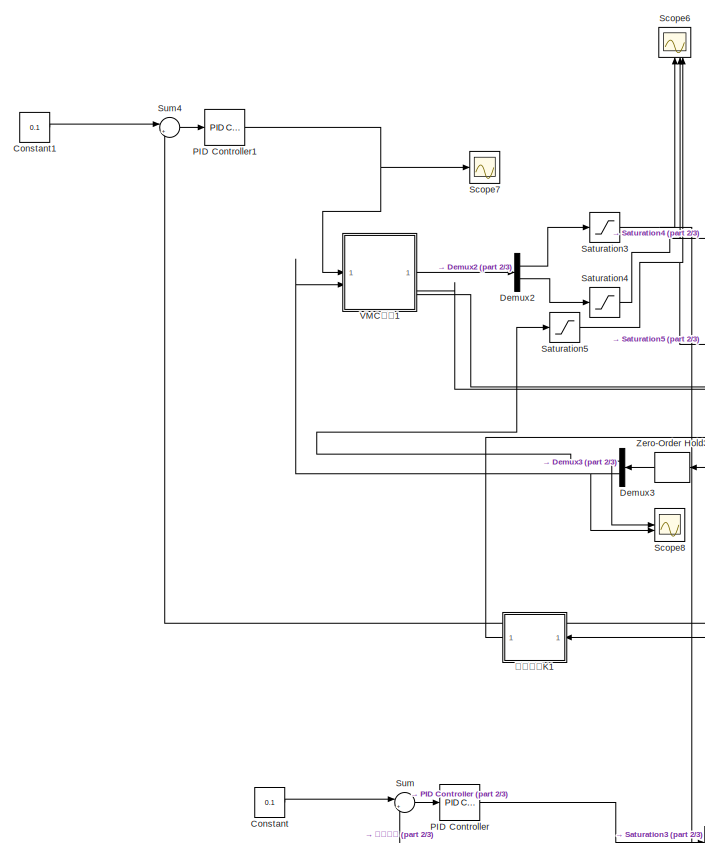
[diagram: root canvas - part 1/3, top left region]
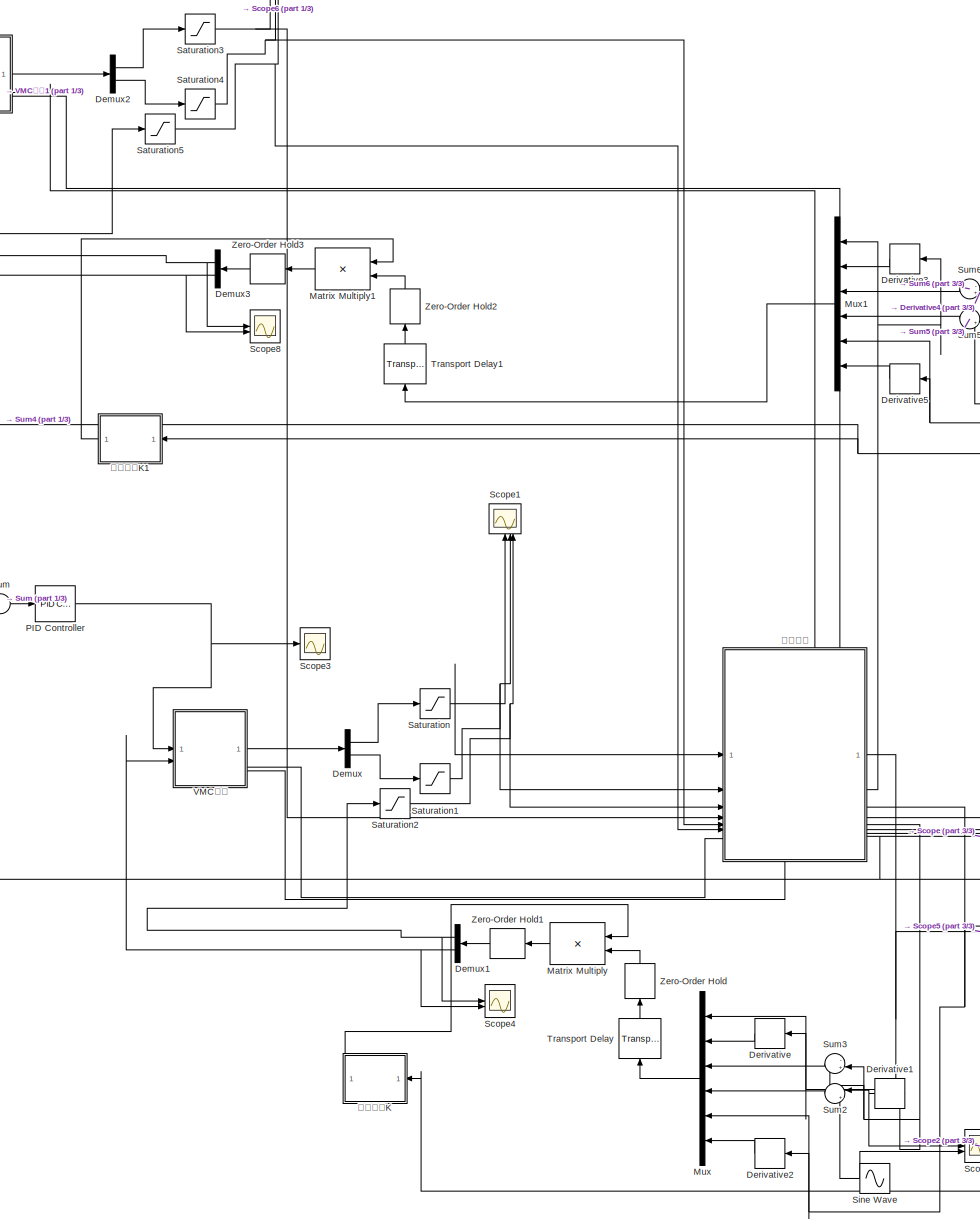
[diagram: root canvas - part 2/3, center side, full height]
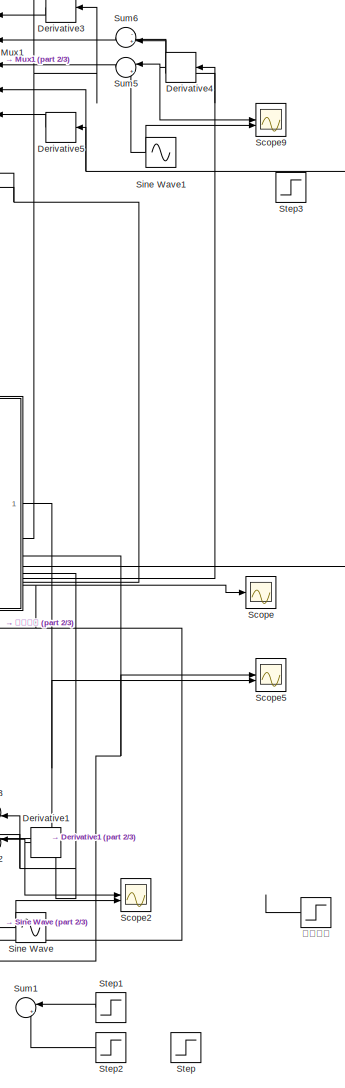
[diagram: root canvas - part 3/3, middle right region]
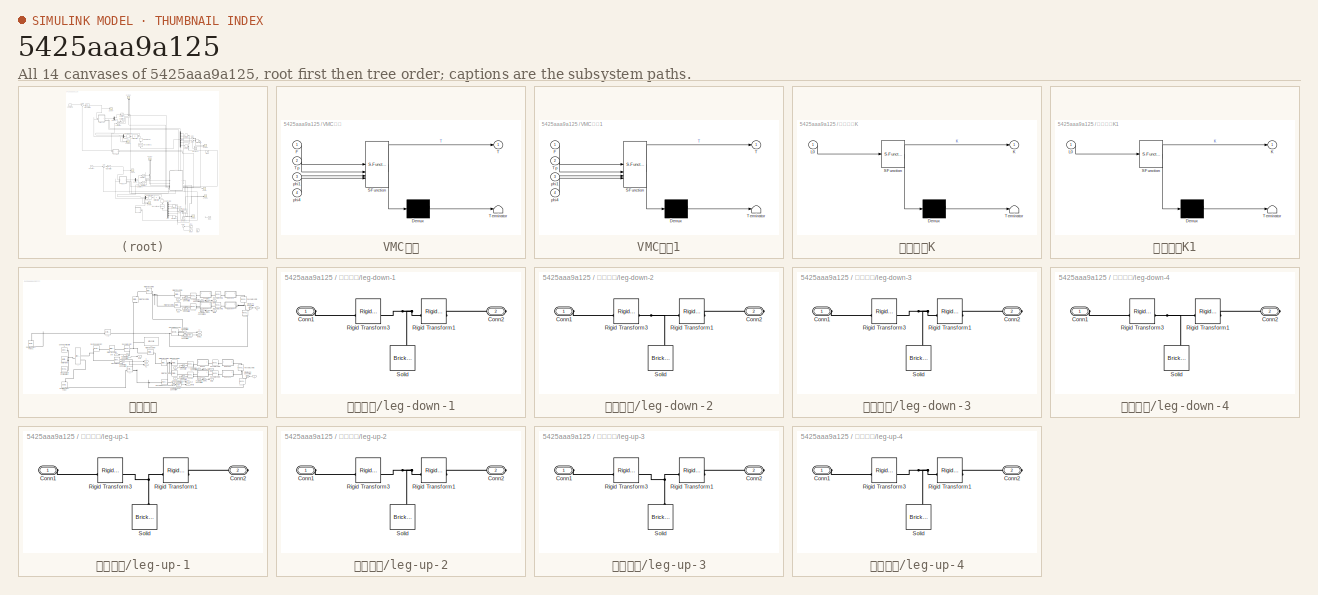
[diagram: thumbnail index - all 14 canvases of the model, root first then tree order]
MODEL slx_5425aaa9a125
KIND model
CONFIG AbsTol = 1e-3
CONFIG EnableMultiTasking = on
CONFIG FixedStep = auto
CONFIG MaxStep = auto
CONFIG MinStep = auto
CONFIG RelTol = 1e-3
CONFIG SampleTimeConstraint = Unconstrained
CONFIG SolverName = VariableStepAuto
CONFIG StartTime = 0.0
CONFIG StopTime = 8
BLOCK [Constant] Constant
  Value = 0.1
BLOCK [Constant] Constant1
  Value = 0.1
BLOCK [Demux] Demux
  Outputs = 2
BLOCK [Demux] Demux1
  NameLocation = top
  Outputs = 2
BLOCK [Demux] Demux2
  Outputs = 2
BLOCK [Demux] Demux3
  NameLocation = top
  Outputs = 2
BLOCK [Derivative] Derivative
BLOCK [Derivative] Derivative1
BLOCK [Derivative] Derivative2
BLOCK [Derivative] Derivative3
BLOCK [Derivative] Derivative4
BLOCK [Derivative] Derivative5
BLOCK [Product] Matrix Multiply
  Multiplication = Matrix(*)
  NameLocation = top
BLOCK [Product] Matrix Multiply1
  Multiplication = Matrix(*)
  NameLocation = top
BLOCK [Mux] Mux
  DisplayOption = bar
  Inputs = 6
  NameLocation = top
BLOCK [Mux] Mux1
  DisplayOption = bar
  Inputs = 6
  NameLocation = top
BLOCK [Reference] PID Controller  REF=slpidlib/PID Controller
  SourceBlock = slpidlib/PID Controller
  SourceType = PID 1dof
BLOCK [Reference] PID Controller1  REF=slpidlib/PID Controller
  SourceBlock = slpidlib/PID Controller
  SourceType = PID 1dof
BLOCK [Saturate] Saturation
  LowerLimit = -0.15
  UpperLimit = 0.15
  ZeroCross = off
BLOCK [Saturate] Saturation1
  LowerLimit = -0.15
  UpperLimit = 0.15
  ZeroCross = off
BLOCK [Saturate] Saturation2
  LowerLimit = -0.03
  UpperLimit = 0.03
  ZeroCross = off
BLOCK [Saturate] Saturation3
  LowerLimit = -0.15
  UpperLimit = 0.15
  ZeroCross = off
BLOCK [Saturate] Saturation4
  LowerLimit = -0.15
  UpperLimit = 0.15
  ZeroCross = off
BLOCK [Saturate] Saturation5
  LowerLimit = -0.03
  UpperLimit = 0.03
  ZeroCross = off
BLOCK [Scope] Scope
  Floating = off
  NumInputPorts = 1
  ScopeSpecificationString = Simulink.scopes.TimeScopeBlockCfg('CurrentConfiguration', extmgr.ConfigurationSet(extmgr.Configuration('Core','General UI',true),extmgr.Configuration('Core','Source UI',true),extmgr.Configuration('Sources','WiredSimulink',true),extmgr.Configuration('Visuals','Time Domain',true,'SerializedDisplays',{struct('MinYLimReal','0.06474','MaxYLimReal','0.09744','YLabelReal','','MinYLimMag','0.06474','MaxYL...<+1444ch>
BLOCK [Scope] Scope1
  Floating = off
  NameLocation = right
  NumInputPorts = 3
  ScopeSpecificationString = Simulink.scopes.TimeScopeBlockCfg('CurrentConfiguration', extmgr.ConfigurationSet(extmgr.Configuration('Core','General UI',true),extmgr.Configuration('Core','Source UI',true),extmgr.Configuration('Sources','WiredSimulink',true,'DataLoggingVariableName','ScopeData1'),extmgr.Configuration('Visuals','Time Domain',true,'SerializedDisplays',{struct('MinYLimReal','-0.1625','MaxYLimReal','0.1625','YLabel...<+1628ch>
BLOCK [Scope] Scope2
  Floating = off
  NumInputPorts = 2
  ScopeSpecificationString = Simulink.scopes.TimeScopeBlockCfg('CurrentConfiguration', extmgr.ConfigurationSet(extmgr.Configuration('Core','General UI',true,'FigureColor',[1 1 1]),extmgr.Configuration('Core','Source UI',true),extmgr.Configuration('Sources','WiredSimulink',true,'DataLoggingVariableName','ScopeData2'),extmgr.Configuration('Visuals','Time Domain',true,'SerializedDisplays',{struct('MinYLimReal','-0.26198','MaxYLi...<+1721ch>
BLOCK [Scope] Scope3
  Floating = off
  NumInputPorts = 1
  ScopeSpecificationString = Simulink.scopes.TimeScopeBlockCfg('CurrentConfiguration', extmgr.ConfigurationSet(extmgr.Configuration('Core','General UI',true),extmgr.Configuration('Core','Source UI',true),extmgr.Configuration('Sources','WiredSimulink',true,'DataLoggingVariableName','ScopeData1'),extmgr.Configuration('Visuals','Time Domain',true,'SerializedDisplays',{struct('MinYLimReal','-29.37195','MaxYLimReal','39.83656','YL...<+1421ch>
BLOCK [Scope] Scope4
  Floating = off
  NumInputPorts = 2
  ScopeSpecificationString = Simulink.scopes.TimeScopeBlockCfg('CurrentConfiguration', extmgr.ConfigurationSet(extmgr.Configuration('Core','General UI',true),extmgr.Configuration('Core','Source UI',true),extmgr.Configuration('Sources','WiredSimulink',true,'DataLoggingVariableName','ScopeData2'),extmgr.Configuration('Visuals','Time Domain',true,'SerializedDisplays',{struct('MinYLimReal','-0.48718','MaxYLimReal','0.44491','YLab...<+1458ch>
BLOCK [Scope] Scope5
  Floating = off
  NumInputPorts = 2
  ScopeSpecificationString = Simulink.scopes.TimeScopeBlockCfg('CurrentConfiguration', extmgr.ConfigurationSet(extmgr.Configuration('Core','General UI',true,'FigureColor',[1 1 1]),extmgr.Configuration('Core','Source UI',true),extmgr.Configuration('Sources','WiredSimulink',true,'DataLoggingVariableName','ScopeData1'),extmgr.Configuration('Visuals','Time Domain',true,'SerializedDisplays',{struct('MinYLimReal','-0.10909','MaxYLi...<+2292ch>
BLOCK [Scope] Scope6
  Floating = off
  NameLocation = right
  NumInputPorts = 3
  ScopeSpecificationString = Simulink.scopes.TimeScopeBlockCfg('CurrentConfiguration', extmgr.ConfigurationSet(extmgr.Configuration('Core','General UI',true),extmgr.Configuration('Core','Source UI',true),extmgr.Configuration('Sources','WiredSimulink',true,'DataLoggingVariableName','ScopeData1'),extmgr.Configuration('Visuals','Time Domain',true,'SerializedDisplays',{struct('MinYLimReal','-0.1625','MaxYLimReal','0.1625','YLabel...<+1590ch>
BLOCK [Scope] Scope7
  Floating = off
  NumInputPorts = 1
  ScopeSpecificationString = Simulink.scopes.TimeScopeBlockCfg('CurrentConfiguration', extmgr.ConfigurationSet(extmgr.Configuration('Core','General UI',true),extmgr.Configuration('Core','Source UI',true),extmgr.Configuration('Sources','WiredSimulink',true,'DataLoggingVariableName','ScopeData2'),extmgr.Configuration('Visuals','Time Domain',true,'SerializedDisplays',{struct('MinYLimReal','-29.37195','MaxYLimReal','39.83656','YL...<+1421ch>
BLOCK [Scope] Scope8
  Floating = off
  NumInputPorts = 2
  ScopeSpecificationString = Simulink.scopes.TimeScopeBlockCfg('CurrentConfiguration', extmgr.ConfigurationSet(extmgr.Configuration('Core','General UI',true),extmgr.Configuration('Core','Source UI',true),extmgr.Configuration('Sources','WiredSimulink',true,'DataLoggingVariableName','ScopeData3'),extmgr.Configuration('Visuals','Time Domain',true,'SerializedDisplays',{struct('MinYLimReal','-0.48718','MaxYLimReal','0.44491','YLab...<+1458ch>
BLOCK [Scope] Scope9
  Floating = off
  NumInputPorts = 2
  ScopeSpecificationString = Simulink.scopes.TimeScopeBlockCfg('CurrentConfiguration', extmgr.ConfigurationSet(extmgr.Configuration('Core','General UI',true,'FigureColor',[1 1 1]),extmgr.Configuration('Core','Source UI',true),extmgr.Configuration('Sources','WiredSimulink',true,'DataLoggingVariableName','ScopeData4'),extmgr.Configuration('Visuals','Time Domain',true,'SerializedDisplays',{struct('MinYLimReal','-0.30788','MaxYLi...<+1721ch>
BLOCK [Sin] Sine Wave
  Frequency = 1.5
  NameLocation = top
  SampleTime = 0
BLOCK [Sin] Sine Wave1
  Amplitude = 1.5
  Frequency = 1.5
  NameLocation = top
  SampleTime = 0
BLOCK [Step] Step
  After = 0.3
  Commented = on
  NameLocation = top
  SampleTime = 0
  Time = 0.2
BLOCK [Step] Step1
  After = 0.8
  Commented = on
  NameLocation = top
  SampleTime = 0
  Time = 0.2
BLOCK [Step] Step2
  After = -0.8
  Commented = on
  NameLocation = top
  SampleTime = 0
  Time = 4
BLOCK [Step] Step3
  Commented = on
  SampleTime = 0
BLOCK [Sum] Sum
  Inputs = |+-
BLOCK [Sum] Sum1
  Commented = on
  Inputs = |++
  NameLocation = top
BLOCK [Sum] Sum2
  Inputs = |+-
  NameLocation = top
BLOCK [Sum] Sum3
  Inputs = -+|
  NameLocation = top
BLOCK [Sum] Sum4
  Inputs = |+-
BLOCK [Sum] Sum5
  Inputs = |+-
  NameLocation = top
BLOCK [Sum] Sum6
  Inputs = -+|
  NameLocation = top
BLOCK [TransportDelay] Transport Delay
  DelayTime = 0
  NameLocation = right
BLOCK [TransportDelay] Transport Delay1
  DelayTime = 0
  NameLocation = right
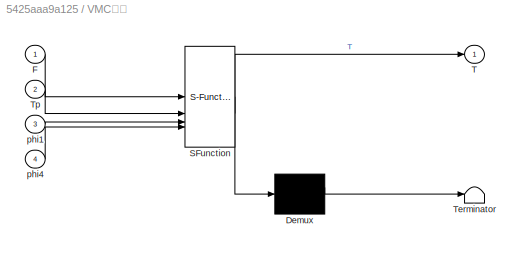
BLOCK [SubSystem] VMC解算
  ErrorFcn = Stateflow.Translate.translate
  PermitHierarchicalResolution = ExplicitOnly
  SFBlockType = MATLAB Function
  TreatAsAtomicUnit = on
BLOCK [Demux] VMC解算/ Demux 
  Outputs = 1
BLOCK [S-Function] VMC解算/ SFunction 
  EnableBusSupport = on
  FunctionName = sf_sfun
  PortCounts = [4 2]
  SFcnIsStateOwnerBlock = off
  SFunctionDeploymentMode = off
  Tag = Stateflow S-Function 2
BLOCK [Terminator] VMC解算/ Terminator 
BLOCK [Inport] VMC解算/F
BLOCK [Outport] VMC解算/T
  VectorParamsAs1DForOutWhenUnconnected = off
BLOCK [Inport] VMC解算/Tp
  Port = 2
BLOCK [Inport] VMC解算/phi1
  Port = 3
BLOCK [Inport] VMC解算/phi4
  Port = 4
BLOCK [SubSystem] VMC解算1
  ErrorFcn = Stateflow.Translate.translate
  PermitHierarchicalResolution = ExplicitOnly
  SFBlockType = MATLAB Function
  TreatAsAtomicUnit = on
BLOCK [Demux] VMC解算1/ Demux 
  Outputs = 1
BLOCK [S-Function] VMC解算1/ SFunction 
  EnableBusSupport = on
  FunctionName = sf_sfun
  PortCounts = [4 2]
  SFcnIsStateOwnerBlock = off
  SFunctionDeploymentMode = off
  Tag = Stateflow S-Function 3
BLOCK [Terminator] VMC解算1/ Terminator 
BLOCK [Inport] VMC解算1/F
BLOCK [Outport] VMC解算1/T
  VectorParamsAs1DForOutWhenUnconnected = off
BLOCK [Inport] VMC解算1/Tp
  Port = 2
BLOCK [Inport] VMC解算1/phi1
  Port = 3
BLOCK [Inport] VMC解算1/phi4
  Port = 4
BLOCK [ZeroOrderHold] Zero-Order Hold
  NameLocation = left
  SampleTime = 0.005
BLOCK [ZeroOrderHold] Zero-Order Hold1
  SampleTime = 0.005
BLOCK [ZeroOrderHold] Zero-Order Hold2
  NameLocation = left
  SampleTime = 0.005
BLOCK [ZeroOrderHold] Zero-Order Hold3
  SampleTime = 0.005
BLOCK [SubSystem] 反馈矩阵K
  ErrorFcn = Stateflow.Translate.translate
  PermitHierarchicalResolution = ExplicitOnly
  SFBlockType = MATLAB Function
  TreatAsAtomicUnit = on
BLOCK [Demux] 反馈矩阵K/ Demux 
  Outputs = 1
BLOCK [S-Function] 反馈矩阵K/ SFunction 
  EnableBusSupport = on
  FunctionName = sf_sfun
  PortCounts = [1 2]
  SFcnIsStateOwnerBlock = off
  SFunctionDeploymentMode = off
  Tag = Stateflow S-Function 1
BLOCK [Terminator] 反馈矩阵K/ Terminator 
BLOCK [Outport] 反馈矩阵K/K
  VectorParamsAs1DForOutWhenUnconnected = off
BLOCK [Inport] 反馈矩阵K/L0
BLOCK [SubSystem] 反馈矩阵K1
  ErrorFcn = Stateflow.Translate.translate
  PermitHierarchicalResolution = ExplicitOnly
  SFBlockType = MATLAB Function
  TreatAsAtomicUnit = on
BLOCK [Demux] 反馈矩阵K1/ Demux 
  Outputs = 1
BLOCK [S-Function] 反馈矩阵K1/ SFunction 
  EnableBusSupport = on
  FunctionName = sf_sfun
  PortCounts = [1 2]
  SFcnIsStateOwnerBlock = off
  SFunctionDeploymentMode = off
  Tag = Stateflow S-Function 4
BLOCK [Terminator] 反馈矩阵K1/ Terminator 
BLOCK [Outport] 反馈矩阵K1/K
  VectorParamsAs1DForOutWhenUnconnected = off
BLOCK [Inport] 反馈矩阵K1/L0
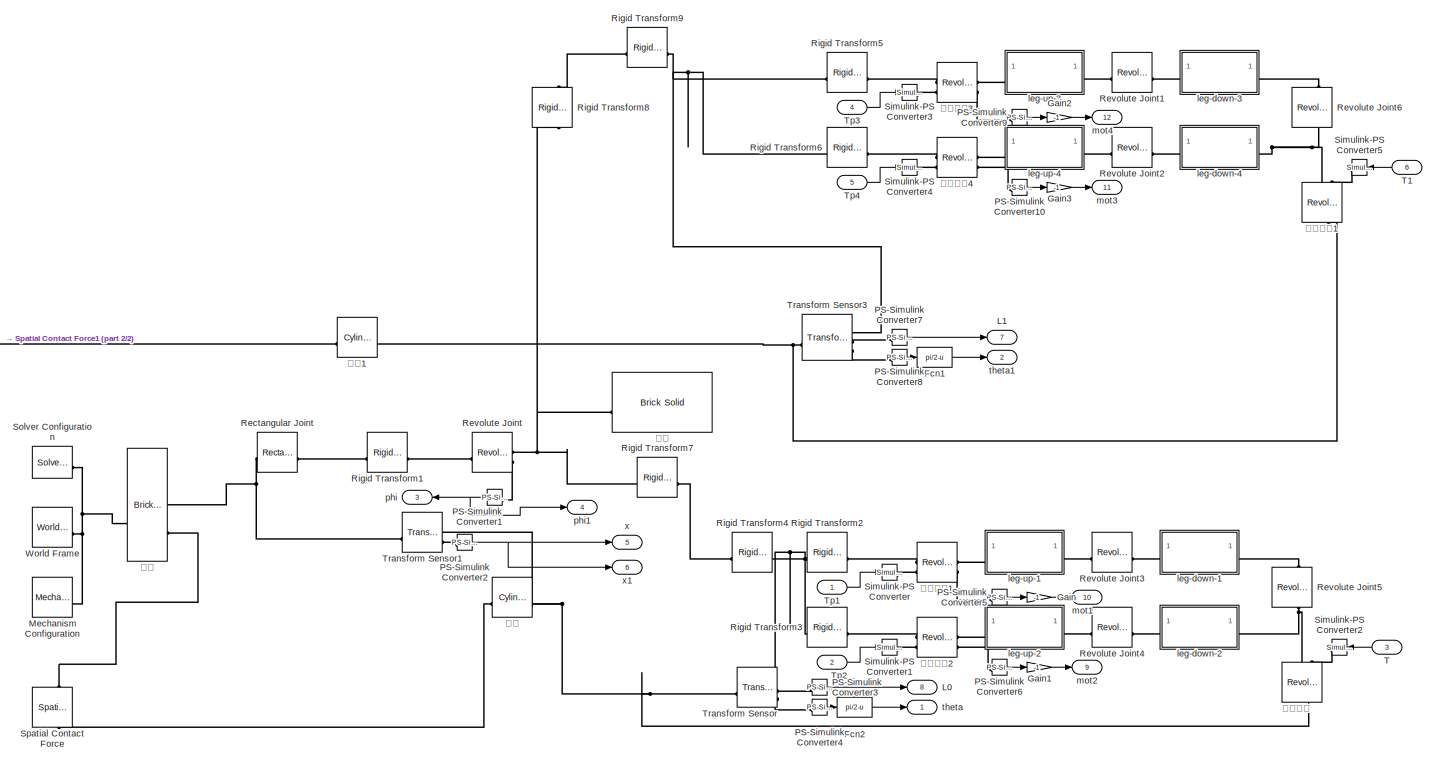
[diagram: 物理系统 - part 1/2, most of the canvas]
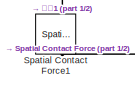
[diagram: 物理系统 - part 2/2, middle left region]
BLOCK [SubSystem] 物理系统
  PortSchema = {"entries":[{"content":{"sides":[{"content":{"connectorIds":["In1","In2","In3","In4","In5","In6","Out9","Out10","Out11","Out12"]},"type":"ConnectorPlacement.EquallySpacedRectSide","uuid":"664d59a3-0a31-49e2-bbc6-fa33d49ec8c0"},{"content":{"connectorIds":["Out1","Out2","Out3","Out4","Out5","Out6","Out7","Out8"],"side":"RIGHT"},"type":"ConnectorPlacement.EquallySpacedRectSide","uuid":"d048cd87-328e-...<+332ch>
BLOCK [Fcn] 物理系统/Fcn1
  Expr = pi/2-u
BLOCK [Fcn] 物理系统/Fcn2
  Expr = pi/2-u
BLOCK [Gain] 物理系统/Gain
  Gain = -1
BLOCK [Gain] 物理系统/Gain1
  Gain = -1
BLOCK [Gain] 物理系统/Gain2
  Gain = -1
BLOCK [Gain] 物理系统/Gain3
  Gain = -1
BLOCK [Outport] 物理系统/L0
  NameLocation = right
  Port = 8
BLOCK [Outport] 物理系统/L1
  NameLocation = right
  Port = 7
BLOCK [Reference] 物理系统/Mechanism Configuration  REF=sm_lib/Utilities/Mechanism
Configuration
  SourceBlock = sm_lib/Utilities/Mechanism\nConfiguration
  SourceType = Mechanism\nConfiguration
BLOCK [Reference] 物理系统/PS-Simulink Converter1  REF=nesl_utility/PS-Simulink
Converter
  SourceBlock = nesl_utility/PS-Simulink\nConverter
  SourceType = PS-Simulink\nConverter
BLOCK [Reference] 物理系统/PS-Simulink Converter10  REF=nesl_utility/PS-Simulink
Converter
  NameLocation = top
  SourceBlock = nesl_utility/PS-Simulink\nConverter
  SourceType = PS-Simulink\nConverter
BLOCK [Reference] 物理系统/PS-Simulink Converter2  REF=nesl_utility/PS-Simulink
Converter
  NameLocation = top
  SourceBlock = nesl_utility/PS-Simulink\nConverter
  SourceType = PS-Simulink\nConverter
BLOCK [Reference] 物理系统/PS-Simulink Converter3  REF=nesl_utility/PS-Simulink
Converter
  NameLocation = top
  SourceBlock = nesl_utility/PS-Simulink\nConverter
  SourceType = PS-Simulink\nConverter
BLOCK [Reference] 物理系统/PS-Simulink Converter4  REF=nesl_utility/PS-Simulink
Converter
  NameLocation = top
  SourceBlock = nesl_utility/PS-Simulink\nConverter
  SourceType = PS-Simulink\nConverter
BLOCK [Reference] 物理系统/PS-Simulink Converter5  REF=nesl_utility/PS-Simulink
Converter
  NameLocation = top
  SourceBlock = nesl_utility/PS-Simulink\nConverter
  SourceType = PS-Simulink\nConverter
BLOCK [Reference] 物理系统/PS-Simulink Converter6  REF=nesl_utility/PS-Simulink
Converter
  NameLocation = top
  SourceBlock = nesl_utility/PS-Simulink\nConverter
  SourceType = PS-Simulink\nConverter
BLOCK [Reference] 物理系统/PS-Simulink Converter7  REF=nesl_utility/PS-Simulink
Converter
  NameLocation = top
  SourceBlock = nesl_utility/PS-Simulink\nConverter
  SourceType = PS-Simulink\nConverter
BLOCK [Reference] 物理系统/PS-Simulink Converter8  REF=nesl_utility/PS-Simulink
Converter
  NameLocation = top
  SourceBlock = nesl_utility/PS-Simulink\nConverter
  SourceType = PS-Simulink\nConverter
BLOCK [Reference] 物理系统/PS-Simulink Converter9  REF=nesl_utility/PS-Simulink
Converter
  NameLocation = top
  SourceBlock = nesl_utility/PS-Simulink\nConverter
  SourceType = PS-Simulink\nConverter
BLOCK [Reference] 物理系统/Rectangular Joint  REF=sm_lib/Joints/Rectangular
Joint
  SourceBlock = sm_lib/Joints/Rectangular\nJoint
  SourceType = Rectangular\nJoint
BLOCK [Reference] 物理系统/Revolute Joint  REF=sm_lib/Joints/Revolute Joint
  SourceBlock = sm_lib/Joints/Revolute Joint
  SourceType = Revolute Joint
BLOCK [Reference] 物理系统/Revolute Joint1  REF=sm_lib/Joints/Revolute Joint
  SourceBlock = sm_lib/Joints/Revolute Joint
  SourceType = Revolute Joint
BLOCK [Reference] 物理系统/Revolute Joint2  REF=sm_lib/Joints/Revolute Joint
  SourceBlock = sm_lib/Joints/Revolute Joint
  SourceType = Revolute Joint
BLOCK [Reference] 物理系统/Revolute Joint3  REF=sm_lib/Joints/Revolute Joint
  SourceBlock = sm_lib/Joints/Revolute Joint
  SourceType = Revolute Joint
BLOCK [Reference] 物理系统/Revolute Joint4  REF=sm_lib/Joints/Revolute Joint
  SourceBlock = sm_lib/Joints/Revolute Joint
  SourceType = Revolute Joint
BLOCK [Reference] 物理系统/Revolute Joint5  REF=sm_lib/Joints/Revolute Joint
  NameLocation = right
  SourceBlock = sm_lib/Joints/Revolute Joint
  SourceType = Revolute Joint
BLOCK [Reference] 物理系统/Revolute Joint6  REF=sm_lib/Joints/Revolute Joint
  NameLocation = right
  SourceBlock = sm_lib/Joints/Revolute Joint
  SourceType = Revolute Joint
BLOCK [Reference] 物理系统/Rigid Transform1  REF=sm_lib/Frames and
Transforms/Rigid
Transform
  SourceBlock = sm_lib/Frames and\nTransforms/Rigid\nTransform
  SourceType = Rigid\nTransform
BLOCK [Reference] 物理系统/Rigid Transform2  REF=sm_lib/Frames and
Transforms/Rigid
Transform
  SourceBlock = sm_lib/Frames and\nTransforms/Rigid\nTransform
  SourceType = Rigid\nTransform
BLOCK [Reference] 物理系统/Rigid Transform3  REF=sm_lib/Frames and
Transforms/Rigid
Transform
  SourceBlock = sm_lib/Frames and\nTransforms/Rigid\nTransform
  SourceType = Rigid\nTransform
BLOCK [Reference] 物理系统/Rigid Transform4  REF=sm_lib/Frames and
Transforms/Rigid
Transform
  SourceBlock = sm_lib/Frames and\nTransforms/Rigid\nTransform
  SourceType = Rigid\nTransform
BLOCK [Reference] 物理系统/Rigid Transform5  REF=sm_lib/Frames and
Transforms/Rigid
Transform
  SourceBlock = sm_lib/Frames and\nTransforms/Rigid\nTransform
  SourceType = Rigid\nTransform
BLOCK [Reference] 物理系统/Rigid Transform6  REF=sm_lib/Frames and
Transforms/Rigid
Transform
  SourceBlock = sm_lib/Frames and\nTransforms/Rigid\nTransform
  SourceType = Rigid\nTransform
BLOCK [Reference] 物理系统/Rigid Transform7  REF=sm_lib/Frames and
Transforms/Rigid
Transform
  SourceBlock = sm_lib/Frames and\nTransforms/Rigid\nTransform
  SourceType = Rigid\nTransform
BLOCK [Reference] 物理系统/Rigid Transform8  REF=sm_lib/Frames and
Transforms/Rigid
Transform
  NameLocation = right
  SourceBlock = sm_lib/Frames and\nTransforms/Rigid\nTransform
  SourceType = Rigid\nTransform
BLOCK [Reference] 物理系统/Rigid Transform9  REF=sm_lib/Frames and
Transforms/Rigid
Transform
  SourceBlock = sm_lib/Frames and\nTransforms/Rigid\nTransform
  SourceType = Rigid\nTransform
BLOCK [Reference] 物理系统/Simulink-PS Converter  REF=nesl_utility/Simulink-PS
Converter
  SourceBlock = nesl_utility/Simulink-PS\nConverter
  SourceType = Simulink-PS\nConverter
BLOCK [Reference] 物理系统/Simulink-PS Converter1  REF=nesl_utility/Simulink-PS
Converter
  SourceBlock = nesl_utility/Simulink-PS\nConverter
  SourceType = Simulink-PS\nConverter
BLOCK [Reference] 物理系统/Simulink-PS Converter2  REF=nesl_utility/Simulink-PS
Converter
  NameLocation = top
  SourceBlock = nesl_utility/Simulink-PS\nConverter
  SourceType = Simulink-PS\nConverter
BLOCK [Reference] 物理系统/Simulink-PS Converter3  REF=nesl_utility/Simulink-PS
Converter
  SourceBlock = nesl_utility/Simulink-PS\nConverter
  SourceType = Simulink-PS\nConverter
BLOCK [Reference] 物理系统/Simulink-PS Converter4  REF=nesl_utility/Simulink-PS
Converter
  SourceBlock = nesl_utility/Simulink-PS\nConverter
  SourceType = Simulink-PS\nConverter
BLOCK [Reference] 物理系统/Simulink-PS Converter5  REF=nesl_utility/Simulink-PS
Converter
  NameLocation = top
  SourceBlock = nesl_utility/Simulink-PS\nConverter
  SourceType = Simulink-PS\nConverter
BLOCK [Reference] 物理系统/Solver Configuration  REF=nesl_utility/Solver
Configuration
  SourceBlock = nesl_utility/Solver\nConfiguration
  SourceType = Solver\nConfiguration
BLOCK [Reference] 物理系统/Spatial Contact Force  REF=sm_lib/Forces and
Torques/Spatial
Contact Force
  NameLocation = left
  SourceBlock = sm_lib/Forces and\nTorques/Spatial\nContact Force
  SourceType = Spatial\nContact Force
BLOCK [Reference] 物理系统/Spatial Contact Force1  REF=sm_lib/Forces and
Torques/Spatial
Contact Force
  NameLocation = left
  SourceBlock = sm_lib/Forces and\nTorques/Spatial\nContact Force
  SourceType = Spatial\nContact Force
BLOCK [Inport] 物理系统/T
  NameLocation = right
  Port = 3
BLOCK [Inport] 物理系统/T1
  NameLocation = right
  Port = 6
BLOCK [Inport] 物理系统/Tp1
  NameLocation = left
BLOCK [Inport] 物理系统/Tp2
  NameLocation = left
  Port = 2
BLOCK [Inport] 物理系统/Tp3
  NameLocation = left
  Port = 4
BLOCK [Inport] 物理系统/Tp4
  NameLocation = left
  Port = 5
BLOCK [Reference] 物理系统/Transform Sensor  REF=sm_lib/Frames and
Transforms/Transform
Sensor
  SourceBlock = sm_lib/Frames and\nTransforms/Transform\nSensor
  SourceType = Transform\nSensor
BLOCK [Reference] 物理系统/Transform Sensor1  REF=sm_lib/Frames and
Transforms/Transform
Sensor
  SourceBlock = sm_lib/Frames and\nTransforms/Transform\nSensor
  SourceType = Transform\nSensor
BLOCK [Reference] 物理系统/Transform Sensor3  REF=sm_lib/Frames and
Transforms/Transform
Sensor
  SourceBlock = sm_lib/Frames and\nTransforms/Transform\nSensor
  SourceType = Transform\nSensor
BLOCK [Reference] 物理系统/World Frame  REF=sm_lib/Frames and
Transforms/World Frame
  SourceBlock = sm_lib/Frames and\nTransforms/World Frame
  SourceType = World Frame
BLOCK [SubSystem] 物理系统/leg-down-1
BLOCK [PMIOPort] 物理系统/leg-down-1/Conn1
  Side = Left
BLOCK [PMIOPort] 物理系统/leg-down-1/Conn2
  Port = 2
  Side = Right
BLOCK [Reference] 物理系统/leg-down-1/Rigid Transform1  REF=sm_lib/Frames and
Transforms/Rigid
Transform
  SourceBlock = sm_lib/Frames and\nTransforms/Rigid\nTransform
  SourceType = Rigid\nTransform
BLOCK [Reference] 物理系统/leg-down-1/Rigid Transform3  REF=sm_lib/Frames and
Transforms/Rigid
Transform
  SourceBlock = sm_lib/Frames and\nTransforms/Rigid\nTransform
  SourceType = Rigid\nTransform
BLOCK [Reference] 物理系统/leg-down-1/Solid  REF=sm_lib/Body Elements/Brick Solid
  NameLocation = right
  SourceBlock = sm_lib/Body Elements/Brick Solid
  SourceType = Brick Solid
BLOCK [SubSystem] 物理系统/leg-down-2
BLOCK [PMIOPort] 物理系统/leg-down-2/Conn1
  Side = Left
BLOCK [PMIOPort] 物理系统/leg-down-2/Conn2
  Port = 2
  Side = Right
BLOCK [Reference] 物理系统/leg-down-2/Rigid Transform1  REF=sm_lib/Frames and
Transforms/Rigid
Transform
  SourceBlock = sm_lib/Frames and\nTransforms/Rigid\nTransform
  SourceType = Rigid\nTransform
BLOCK [Reference] 物理系统/leg-down-2/Rigid Transform3  REF=sm_lib/Frames and
Transforms/Rigid
Transform
  SourceBlock = sm_lib/Frames and\nTransforms/Rigid\nTransform
  SourceType = Rigid\nTransform
BLOCK [Reference] 物理系统/leg-down-2/Solid  REF=sm_lib/Body Elements/Brick Solid
  NameLocation = right
  SourceBlock = sm_lib/Body Elements/Brick Solid
  SourceType = Brick Solid
BLOCK [SubSystem] 物理系统/leg-down-3
BLOCK [PMIOPort] 物理系统/leg-down-3/Conn1
  Side = Left
BLOCK [PMIOPort] 物理系统/leg-down-3/Conn2
  Port = 2
  Side = Right
BLOCK [Reference] 物理系统/leg-down-3/Rigid Transform1  REF=sm_lib/Frames and
Transforms/Rigid
Transform
  SourceBlock = sm_lib/Frames and\nTransforms/Rigid\nTransform
  SourceType = Rigid\nTransform
BLOCK [Reference] 物理系统/leg-down-3/Rigid Transform3  REF=sm_lib/Frames and
Transforms/Rigid
Transform
  SourceBlock = sm_lib/Frames and\nTransforms/Rigid\nTransform
  SourceType = Rigid\nTransform
BLOCK [Reference] 物理系统/leg-down-3/Solid  REF=sm_lib/Body Elements/Brick Solid
  NameLocation = right
  SourceBlock = sm_lib/Body Elements/Brick Solid
  SourceType = Brick Solid
BLOCK [SubSystem] 物理系统/leg-down-4
BLOCK [PMIOPort] 物理系统/leg-down-4/Conn1
  Side = Left
BLOCK [PMIOPort] 物理系统/leg-down-4/Conn2
  Port = 2
  Side = Right
BLOCK [Reference] 物理系统/leg-down-4/Rigid Transform1  REF=sm_lib/Frames and
Transforms/Rigid
Transform
  SourceBlock = sm_lib/Frames and\nTransforms/Rigid\nTransform
  SourceType = Rigid\nTransform
BLOCK [Reference] 物理系统/leg-down-4/Rigid Transform3  REF=sm_lib/Frames and
Transforms/Rigid
Transform
  SourceBlock = sm_lib/Frames and\nTransforms/Rigid\nTransform
  SourceType = Rigid\nTransform
BLOCK [Reference] 物理系统/leg-down-4/Solid  REF=sm_lib/Body Elements/Brick Solid
  NameLocation = right
  SourceBlock = sm_lib/Body Elements/Brick Solid
  SourceType = Brick Solid
BLOCK [SubSystem] 物理系统/leg-up-1
BLOCK [PMIOPort] 物理系统/leg-up-1/Conn1
  Side = Left
BLOCK [PMIOPort] 物理系统/leg-up-1/Conn2
  Port = 2
  Side = Right
BLOCK [Reference] 物理系统/leg-up-1/Rigid Transform1  REF=sm_lib/Frames and
Transforms/Rigid
Transform
  SourceBlock = sm_lib/Frames and\nTransforms/Rigid\nTransform
  SourceType = Rigid\nTransform
BLOCK [Reference] 物理系统/leg-up-1/Rigid Transform3  REF=sm_lib/Frames and
Transforms/Rigid
Transform
  SourceBlock = sm_lib/Frames and\nTransforms/Rigid\nTransform
  SourceType = Rigid\nTransform
BLOCK [Reference] 物理系统/leg-up-1/Solid  REF=sm_lib/Body Elements/Brick Solid
  NameLocation = right
  SourceBlock = sm_lib/Body Elements/Brick Solid
  SourceType = Brick Solid
BLOCK [SubSystem] 物理系统/leg-up-2
BLOCK [PMIOPort] 物理系统/leg-up-2/Conn1
  Side = Left
BLOCK [PMIOPort] 物理系统/leg-up-2/Conn2
  Port = 2
  Side = Right
BLOCK [Reference] 物理系统/leg-up-2/Rigid Transform1  REF=sm_lib/Frames and
Transforms/Rigid
Transform
  SourceBlock = sm_lib/Frames and\nTransforms/Rigid\nTransform
  SourceType = Rigid\nTransform
BLOCK [Reference] 物理系统/leg-up-2/Rigid Transform3  REF=sm_lib/Frames and
Transforms/Rigid
Transform
  SourceBlock = sm_lib/Frames and\nTransforms/Rigid\nTransform
  SourceType = Rigid\nTransform
BLOCK [Reference] 物理系统/leg-up-2/Solid  REF=sm_lib/Body Elements/Brick Solid
  NameLocation = right
  SourceBlock = sm_lib/Body Elements/Brick Solid
  SourceType = Brick Solid
BLOCK [SubSystem] 物理系统/leg-up-3
BLOCK [PMIOPort] 物理系统/leg-up-3/Conn1
  Side = Left
BLOCK [PMIOPort] 物理系统/leg-up-3/Conn2
  Port = 2
  Side = Right
BLOCK [Reference] 物理系统/leg-up-3/Rigid Transform1  REF=sm_lib/Frames and
Transforms/Rigid
Transform
  SourceBlock = sm_lib/Frames and\nTransforms/Rigid\nTransform
  SourceType = Rigid\nTransform
BLOCK [Reference] 物理系统/leg-up-3/Rigid Transform3  REF=sm_lib/Frames and
Transforms/Rigid
Transform
  SourceBlock = sm_lib/Frames and\nTransforms/Rigid\nTransform
  SourceType = Rigid\nTransform
BLOCK [Reference] 物理系统/leg-up-3/Solid  REF=sm_lib/Body Elements/Brick Solid
  NameLocation = right
  SourceBlock = sm_lib/Body Elements/Brick Solid
  SourceType = Brick Solid
BLOCK [SubSystem] 物理系统/leg-up-4
BLOCK [PMIOPort] 物理系统/leg-up-4/Conn1
  Side = Left
BLOCK [PMIOPort] 物理系统/leg-up-4/Conn2
  Port = 2
  Side = Right
BLOCK [Reference] 物理系统/leg-up-4/Rigid Transform1  REF=sm_lib/Frames and
Transforms/Rigid
Transform
  SourceBlock = sm_lib/Frames and\nTransforms/Rigid\nTransform
  SourceType = Rigid\nTransform
BLOCK [Reference] 物理系统/leg-up-4/Rigid Transform3  REF=sm_lib/Frames and
Transforms/Rigid
Transform
  SourceBlock = sm_lib/Frames and\nTransforms/Rigid\nTransform
  SourceType = Rigid\nTransform
BLOCK [Reference] 物理系统/leg-up-4/Solid  REF=sm_lib/Body Elements/Brick Solid
  NameLocation = right
  SourceBlock = sm_lib/Body Elements/Brick Solid
  SourceType = Brick Solid
BLOCK [Outport] 物理系统/mot1
  NameLocation = right
  Port = 10
BLOCK [Outport] 物理系统/mot2
  NameLocation = right
  Port = 9
BLOCK [Outport] 物理系统/mot3
  NameLocation = right
  Port = 11
BLOCK [Outport] 物理系统/mot4
  NameLocation = right
  Port = 12
BLOCK [Outport] 物理系统/phi
  NameLocation = left
  Port = 3
BLOCK [Outport] 物理系统/phi1
  NameLocation = right
  Port = 4
BLOCK [Outport] 物理系统/theta
  NameLocation = right
BLOCK [Outport] 物理系统/theta1
  NameLocation = right
  Port = 2
BLOCK [Outport] 物理系统/x
  NameLocation = right
  Port = 5
BLOCK [Outport] 物理系统/x1
  NameLocation = right
  Port = 6
BLOCK [Reference] 物理系统/关节电机1  REF=sm_lib/Joints/Revolute Joint
  SourceBlock = sm_lib/Joints/Revolute Joint
  SourceType = Revolute Joint
BLOCK [Reference] 物理系统/关节电机2  REF=sm_lib/Joints/Revolute Joint
  SourceBlock = sm_lib/Joints/Revolute Joint
  SourceType = Revolute Joint
BLOCK [Reference] 物理系统/关节电机3  REF=sm_lib/Joints/Revolute Joint
  SourceBlock = sm_lib/Joints/Revolute Joint
  SourceType = Revolute Joint
BLOCK [Reference] 物理系统/关节电机4  REF=sm_lib/Joints/Revolute Joint
  SourceBlock = sm_lib/Joints/Revolute Joint
  SourceType = Revolute Joint
BLOCK [Reference] 物理系统/地面  REF=sm_lib/Body Elements/Brick Solid
  SourceBlock = sm_lib/Body Elements/Brick Solid
  SourceType = Brick Solid
BLOCK [Reference] 物理系统/机体  REF=sm_lib/Body Elements/Brick Solid
  SourceBlock = sm_lib/Body Elements/Brick Solid
  SourceType = Brick Solid
BLOCK [Reference] 物理系统/车轮  REF=sm_lib/Body Elements/Cylindrical Solid
  SourceBlock = sm_lib/Body Elements/Cylindrical Solid
  SourceType = Cylindrical Solid
BLOCK [Reference] 物理系统/车轮1  REF=sm_lib/Body Elements/Cylindrical Solid
  SourceBlock = sm_lib/Body Elements/Cylindrical Solid
  SourceType = Cylindrical Solid
BLOCK [Reference] 物理系统/车轮电机  REF=sm_lib/Joints/Revolute Joint
  SourceBlock = sm_lib/Joints/Revolute Joint
  SourceType = Revolute Joint
BLOCK [Reference] 物理系统/车轮电机1  REF=sm_lib/Joints/Revolute Joint
  SourceBlock = sm_lib/Joints/Revolute Joint
  SourceType = Revolute Joint
BLOCK [Step] 速度给定
  Commented = on
  SampleTime = 0
LINE Constant1:1 -> Sum4:1
LINE Constant:1 -> Sum:1
NET Demux1:1 -> Saturation2:1, Scope4:1
NET Demux1:2 -> Scope4:2, VMC解算:2
LINE Demux2:1 -> Saturation3:1
LINE Demux2:2 -> Saturation4:1
NET Demux3:1 -> Saturation5:1, Scope8:1
NET Demux3:2 -> Scope8:2, VMC解算1:2
LINE Demux:1 -> Saturation:1
LINE Demux:2 -> Saturation1:1
NET Derivative1:1 -> Scope2:1, Sum2:1
LINE Derivative2:1 -> Mux:6
LINE Derivative3:1 -> Mux1:2
NET Derivative4:1 -> Scope9:1, Sum5:1
LINE Derivative5:1 -> Mux1:6
LINE Derivative:1 -> Mux:2
LINE Matrix Multiply1:1 -> Zero-Order Hold3:1
LINE Matrix Multiply:1 -> Zero-Order Hold1:1
LINE Mux1:1 -> Transport Delay1:1
LINE Mux:1 -> Transport Delay:1
NET PID Controller1:1 -> Scope7:1, VMC解算1:1
NET PID Controller:1 -> Scope3:1, VMC解算:1
NET Saturation1:1 -> Scope1:2, 物理系统:2
NET Saturation2:1 -> Scope1:3, 物理系统:3
NET Saturation3:1 -> Scope6:1, 物理系统:4
NET Saturation4:1 -> Scope6:2, 物理系统:5
NET Saturation5:1 -> Scope6:3, 物理系统:6
NET Saturation:1 -> Scope1:1, 物理系统:1
NET Sine Wave1:1 -> Scope9:2, Sum5:2
NET Sine Wave:1 -> Scope2:2, Sum2:2
LINE Step1:1 -> Sum1:1
LINE Step2:1 -> Sum1:2
LINE Sum2:1 -> Mux:4
LINE Sum3:1 -> Mux:3
LINE Sum4:1 -> PID Controller1:1
LINE Sum5:1 -> Mux1:4
LINE Sum6:1 -> Mux1:3
LINE Sum:1 -> PID Controller:1
LINE Transport Delay1:1 -> Zero-Order Hold2:1
LINE Transport Delay:1 -> Zero-Order Hold:1
LINE VMC解算1:1 -> Demux2:1
LINE VMC解算:1 -> Demux:1
LINE Zero-Order Hold1:1 -> Demux1:1
LINE Zero-Order Hold2:1 -> Matrix Multiply1:2
LINE Zero-Order Hold3:1 -> Demux3:1
LINE Zero-Order Hold:1 -> Matrix Multiply:2
LINE 反馈矩阵K1:1 -> Matrix Multiply1:1
LINE 反馈矩阵K:1 -> Matrix Multiply:1
LINE 物理系统/Fcn1:1 -> 物理系统/theta1:1
LINE 物理系统/Fcn2:1 -> 物理系统/theta:1
LINE 物理系统/Gain1:1 -> 物理系统/mot2:1
LINE 物理系统/Gain2:1 -> 物理系统/mot4:1
LINE 物理系统/Gain3:1 -> 物理系统/mot3:1
LINE 物理系统/Gain:1 -> 物理系统/mot1:1
LINE 物理系统/PS-Simulink Converter10:1 -> 物理系统/Gain3:1
NET 物理系统/PS-Simulink Converter1:1 -> 物理系统/phi1:1, 物理系统/phi:1
NET 物理系统/PS-Simulink Converter2:1 -> 物理系统/x1:1, 物理系统/x:1
LINE 物理系统/PS-Simulink Converter3:1 -> 物理系统/L0:1
LINE 物理系统/PS-Simulink Converter4:1 -> 物理系统/Fcn2:1
LINE 物理系统/PS-Simulink Converter5:1 -> 物理系统/Gain:1
LINE 物理系统/PS-Simulink Converter6:1 -> 物理系统/Gain1:1
LINE 物理系统/PS-Simulink Converter7:1 -> 物理系统/L1:1
LINE 物理系统/PS-Simulink Converter8:1 -> 物理系统/Fcn1:1
LINE 物理系统/PS-Simulink Converter9:1 -> 物理系统/Gain2:1
LINE 物理系统/T1:1 -> 物理系统/Simulink-PS Converter5:1
LINE 物理系统/T:1 -> 物理系统/Simulink-PS Converter2:1
LINE 物理系统/Tp1:1 -> 物理系统/Simulink-PS Converter:1
LINE 物理系统/Tp2:1 -> 物理系统/Simulink-PS Converter1:1
LINE 物理系统/Tp3:1 -> 物理系统/Simulink-PS Converter3:1
LINE 物理系统/Tp4:1 -> 物理系统/Simulink-PS Converter4:1
NET 物理系统:1 -> Derivative:1, Mux:1, Scope5:2
LINE 物理系统:10 -> VMC解算:4
LINE 物理系统:11 -> VMC解算1:4
LINE 物理系统:12 -> VMC解算1:3
NET 物理系统:2 -> Derivative3:1, Mux1:1
NET 物理系统:3 -> Derivative2:1, Mux:5, Scope5:1
NET 物理系统:4 -> Derivative5:1, Mux1:5
NET 物理系统:5 -> Derivative1:1, Sum3:1, Sum3:2
NET 物理系统:6 -> Derivative4:1, Sum6:1, Sum6:2
NET 物理系统:7 -> Sum4:2, 反馈矩阵K1:1
NET 物理系统:8 -> Scope:1, Sum:2, 反馈矩阵K:1
LINE 物理系统:9 -> VMC解算:3
PNET net1: 物理系统/Mechanism Configuration:RConn1 -- 物理系统/Solver Configuration:RConn1 -- 物理系统/World Frame:RConn1 -- 物理系统/地面:RConn1
PLINE 物理系统/PS-Simulink Converter10:LConn1 -- 物理系统/关节电机4:RConn2
PLINE 物理系统/PS-Simulink Converter1:LConn1 -- 物理系统/Revolute Joint:RConn2
PLINE 物理系统/PS-Simulink Converter2:LConn1 -- 物理系统/Transform Sensor1:RConn2
PLINE 物理系统/PS-Simulink Converter3:LConn1 -- 物理系统/Transform Sensor:RConn2
PLINE 物理系统/PS-Simulink Converter4:LConn1 -- 物理系统/Transform Sensor:RConn3
PLINE 物理系统/PS-Simulink Converter5:LConn1 -- 物理系统/关节电机1:RConn2
PLINE 物理系统/PS-Simulink Converter6:LConn1 -- 物理系统/关节电机2:RConn2
PLINE 物理系统/PS-Simulink Converter7:LConn1 -- 物理系统/Transform Sensor3:RConn2
PLINE 物理系统/PS-Simulink Converter8:LConn1 -- 物理系统/Transform Sensor3:RConn3
PLINE 物理系统/PS-Simulink Converter9:LConn1 -- 物理系统/关节电机3:RConn2
PNET net2: 物理系统/Rectangular Joint:LConn1 -- 物理系统/Transform Sensor1:LConn1 -- 物理系统/地面:LConn1
PLINE 物理系统/Rectangular Joint:RConn1 -- 物理系统/Rigid Transform1:LConn1
PLINE 物理系统/Revolute Joint1:LConn1 -- 物理系统/leg-up-3:RConn1
PLINE 物理系统/Revolute Joint1:RConn1 -- 物理系统/leg-down-3:LConn1
PLINE 物理系统/Revolute Joint2:LConn1 -- 物理系统/leg-up-4:RConn1
PLINE 物理系统/Revolute Joint2:RConn1 -- 物理系统/leg-down-4:LConn1
PLINE 物理系统/Revolute Joint3:LConn1 -- 物理系统/leg-up-1:RConn1
PLINE 物理系统/Revolute Joint3:RConn1 -- 物理系统/leg-down-1:LConn1
PLINE 物理系统/Revolute Joint4:LConn1 -- 物理系统/leg-up-2:RConn1
PLINE 物理系统/Revolute Joint4:RConn1 -- 物理系统/leg-down-2:LConn1
PNET net3: 物理系统/Revolute Joint5:LConn1 -- 物理系统/leg-down-2:RConn1 -- 物理系统/车轮电机:LConn1
PLINE 物理系统/Revolute Joint5:RConn1 -- 物理系统/leg-down-1:RConn1
PNET net4: 物理系统/Revolute Joint6:LConn1 -- 物理系统/leg-down-4:RConn1 -- 物理系统/车轮电机1:LConn1
PLINE 物理系统/Revolute Joint6:RConn1 -- 物理系统/leg-down-3:RConn1
PLINE 物理系统/Revolute Joint:LConn1 -- 物理系统/Rigid Transform1:RConn1
PNET net5: 物理系统/Revolute Joint:RConn1 -- 物理系统/Rigid Transform7:LConn1 -- 物理系统/Rigid Transform8:LConn1 -- 物理系统/机体:RConn1
PNET net6: 物理系统/Rigid Transform2:LConn1 -- 物理系统/Rigid Transform3:LConn1 -- 物理系统/Rigid Transform4:RConn1 -- 物理系统/Transform Sensor:RConn1
PLINE 物理系统/Rigid Transform2:RConn1 -- 物理系统/关节电机1:LConn1
PLINE 物理系统/Rigid Transform3:RConn1 -- 物理系统/关节电机2:LConn1
PLINE 物理系统/Rigid Transform4:LConn1 -- 物理系统/Rigid Transform7:RConn1
PNET net7: 物理系统/Rigid Transform5:LConn1 -- 物理系统/Rigid Transform6:LConn1 -- 物理系统/Rigid Transform9:RConn1 -- 物理系统/Transform Sensor3:RConn1
PLINE 物理系统/Rigid Transform5:RConn1 -- 物理系统/关节电机3:LConn1
PLINE 物理系统/Rigid Transform6:RConn1 -- 物理系统/关节电机4:LConn1
PLINE 物理系统/Rigid Transform8:RConn1 -- 物理系统/Rigid Transform9:LConn1
PLINE 物理系统/Simulink-PS Converter1:RConn1 -- 物理系统/关节电机2:LConn2
PLINE 物理系统/Simulink-PS Converter2:RConn1 -- 物理系统/车轮电机:LConn2
PLINE 物理系统/Simulink-PS Converter3:RConn1 -- 物理系统/关节电机3:LConn2
PLINE 物理系统/Simulink-PS Converter4:RConn1 -- 物理系统/关节电机4:LConn2
PLINE 物理系统/Simulink-PS Converter5:RConn1 -- 物理系统/车轮电机1:LConn2
PLINE 物理系统/Simulink-PS Converter:RConn1 -- 物理系统/关节电机1:LConn2
PLINE 物理系统/Spatial Contact Force1:LConn1 -- 物理系统/车轮1:LConn1
PNET net8: 物理系统/Spatial Contact Force1:RConn1 -- 物理系统/Spatial Contact Force:LConn1 -- 物理系统/地面:LConn2
PLINE 物理系统/Spatial Contact Force:RConn1 -- 物理系统/车轮:LConn1
PNET net9: 物理系统/Transform Sensor1:RConn1 -- 物理系统/Transform Sensor:LConn1 -- 物理系统/车轮:RConn1 -- 物理系统/车轮电机:RConn1
PNET net10: 物理系统/Transform Sensor3:LConn1 -- 物理系统/车轮1:RConn1 -- 物理系统/车轮电机1:RConn1
PLINE 物理系统/leg-down-1/Conn1:RConn1 -- 物理系统/leg-down-1/Rigid Transform3:LConn1
PLINE 物理系统/leg-down-1/Conn2:RConn1 -- 物理系统/leg-down-1/Rigid Transform1:RConn1
PNET net11: 物理系统/leg-down-1/Rigid Transform1:LConn1 -- 物理系统/leg-down-1/Rigid Transform3:RConn1 -- 物理系统/leg-down-1/Solid:RConn1
PLINE 物理系统/leg-down-2/Conn1:RConn1 -- 物理系统/leg-down-2/Rigid Transform3:LConn1
PLINE 物理系统/leg-down-2/Conn2:RConn1 -- 物理系统/leg-down-2/Rigid Transform1:RConn1
PNET net12: 物理系统/leg-down-2/Rigid Transform1:LConn1 -- 物理系统/leg-down-2/Rigid Transform3:RConn1 -- 物理系统/leg-down-2/Solid:RConn1
PLINE 物理系统/leg-down-3/Conn1:RConn1 -- 物理系统/leg-down-3/Rigid Transform3:LConn1
PLINE 物理系统/leg-down-3/Conn2:RConn1 -- 物理系统/leg-down-3/Rigid Transform1:RConn1
PNET net13: 物理系统/leg-down-3/Rigid Transform1:LConn1 -- 物理系统/leg-down-3/Rigid Transform3:RConn1 -- 物理系统/leg-down-3/Solid:RConn1
PLINE 物理系统/leg-down-4/Conn1:RConn1 -- 物理系统/leg-down-4/Rigid Transform3:LConn1
PLINE 物理系统/leg-down-4/Conn2:RConn1 -- 物理系统/leg-down-4/Rigid Transform1:RConn1
PNET net14: 物理系统/leg-down-4/Rigid Transform1:LConn1 -- 物理系统/leg-down-4/Rigid Transform3:RConn1 -- 物理系统/leg-down-4/Solid:RConn1
PLINE 物理系统/leg-up-1/Conn1:RConn1 -- 物理系统/leg-up-1/Rigid Transform3:LConn1
PLINE 物理系统/leg-up-1/Conn2:RConn1 -- 物理系统/leg-up-1/Rigid Transform1:RConn1
PNET net15: 物理系统/leg-up-1/Rigid Transform1:LConn1 -- 物理系统/leg-up-1/Rigid Transform3:RConn1 -- 物理系统/leg-up-1/Solid:RConn1
PLINE 物理系统/leg-up-1:LConn1 -- 物理系统/关节电机1:RConn1
PLINE 物理系统/leg-up-2/Conn1:RConn1 -- 物理系统/leg-up-2/Rigid Transform3:LConn1
PLINE 物理系统/leg-up-2/Conn2:RConn1 -- 物理系统/leg-up-2/Rigid Transform1:RConn1
PNET net16: 物理系统/leg-up-2/Rigid Transform1:LConn1 -- 物理系统/leg-up-2/Rigid Transform3:RConn1 -- 物理系统/leg-up-2/Solid:RConn1
PLINE 物理系统/leg-up-2:LConn1 -- 物理系统/关节电机2:RConn1
PLINE 物理系统/leg-up-3/Conn1:RConn1 -- 物理系统/leg-up-3/Rigid Transform3:LConn1
PLINE 物理系统/leg-up-3/Conn2:RConn1 -- 物理系统/leg-up-3/Rigid Transform1:RConn1
PNET net17: 物理系统/leg-up-3/Rigid Transform1:LConn1 -- 物理系统/leg-up-3/Rigid Transform3:RConn1 -- 物理系统/leg-up-3/Solid:RConn1
PLINE 物理系统/leg-up-3:LConn1 -- 物理系统/关节电机3:RConn1
PLINE 物理系统/leg-up-4/Conn1:RConn1 -- 物理系统/leg-up-4/Rigid Transform3:LConn1
PLINE 物理系统/leg-up-4/Conn2:RConn1 -- 物理系统/leg-up-4/Rigid Transform1:RConn1
PNET net18: 物理系统/leg-up-4/Rigid Transform1:LConn1 -- 物理系统/leg-up-4/Rigid Transform3:RConn1 -- 物理系统/leg-up-4/Solid:RConn1
PLINE 物理系统/leg-up-4:LConn1 -- 物理系统/关节电机4:RConn1
note: NET lines group one-source signal fan-out (src -> all destinations, sorted); 1:1 wires keep LINE; PNET lines group multi-terminal physical nets as a canonical sorted terminal list (undirected conserving connections); 2-terminal nets keep the pairwise PLINE form
CHART 反馈矩阵K states=1 transitions=1
  STATE_LABEL 'eML_blk_kernel()'
  STATE_LABEL 'SCRIPT:\nfunction K = fcn(L0)\n    K=lqr_k(L0);\n'
CHART VMC解算 states=1 transitions=1
  STATE_LABEL 'eML_blk_kernel()'
  STATE_LABEL 'SCRIPT:\nfunction T = fcn(F,Tp,phi1,phi4)\n    T=leg_conv(F,Tp,phi1,phi4);\n'
CHART VMC解算1 states=1 transitions=1
  STATE_LABEL 'eML_blk_kernel()'
  STATE_LABEL 'SCRIPT:\nfunction T = fcn(F,Tp,phi1,phi4)\n    T=leg_conv(F,Tp,phi1,phi4);\n'
CHART 反馈矩阵K1 states=1 transitions=1
  STATE_LABEL 'eML_blk_kernel()'
  STATE_LABEL 'SCRIPT:\nfunction K = fcn(L0)\n    K=lqr_k(L0);\n'
CHART  states=0 transitions=0
CHART  states=0 transitions=0
CHART  states=0 transitions=0
CHART  states=0 transitions=0
